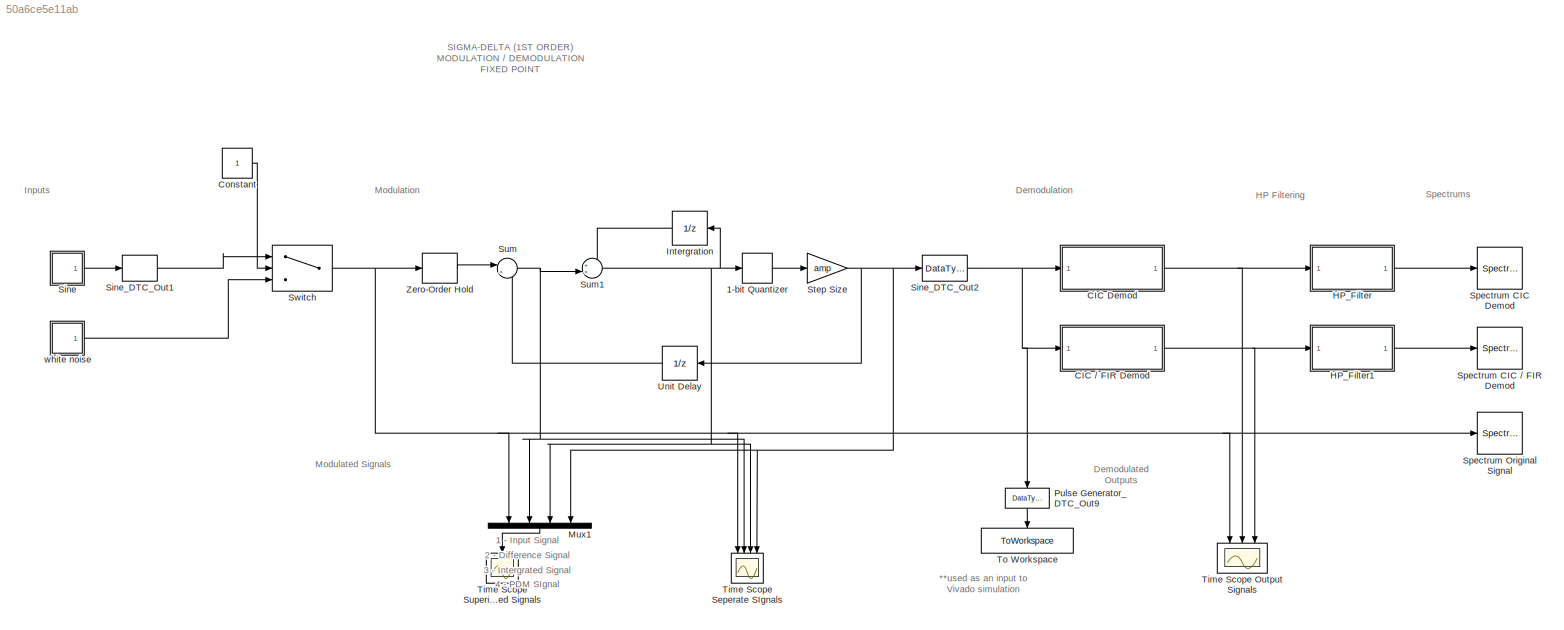
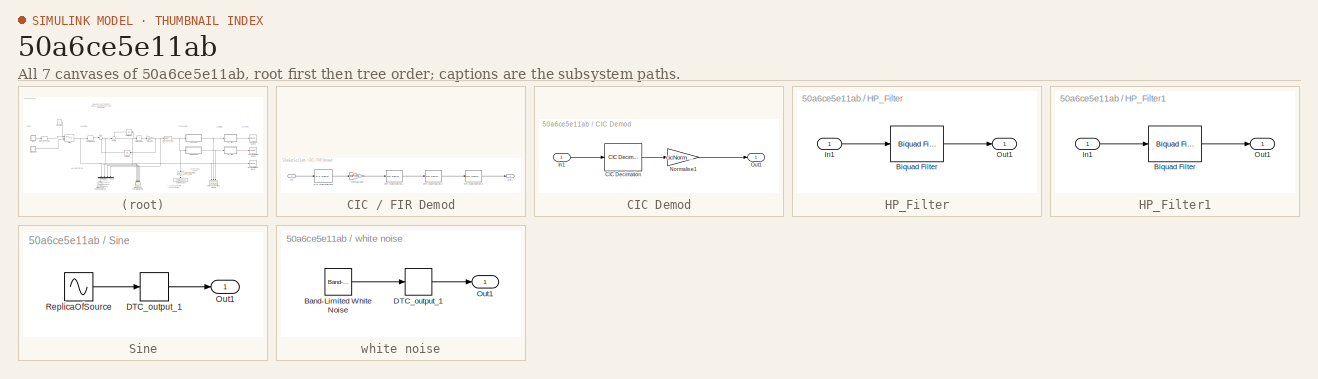
[diagram: thumbnail index - all 7 canvases of the model, root first then tree order]
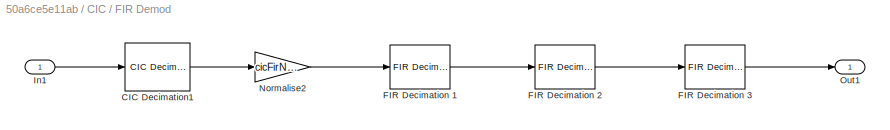
MODEL slx_50a6ce5e11ab
KIND model
CONFIG AbsTol = auto
CONFIG EnableMultiTasking = on
CONFIG FixedStep = auto
CONFIG MaxStep = auto
CONFIG MinStep = auto
CONFIG RelTol = 1e-3
CONFIG SampleTimeConstraint = Unconstrained
CONFIG Solver = FixedStepDiscrete
CONFIG SolverName = FixedStepDiscrete
CONFIG StartTime = 0.0
CONFIG StopTime = runTime
BLOCK [Signum] 1-bit Quantizer
BLOCK [SubSystem] CIC // FIR Demod
  Ports = [1, 1]
  RequestExecContextInheritance = off
BLOCK [Reference] CIC // FIR Demod/CIC Decimation1  REF=dspmlti4/CIC
Decimation
  Ports = [1, 1]
  SourceBlock = dspmlti4/CIC\nDecimation
  SourceProductBaseCode = DS
  SourceProductName = DSP System Toolbox
  SourceType = CIC Decimation
  UserDataPersistent = on
BLOCK [Reference] CIC // FIR Demod/FIR Decimation 1  REF=dspmlti4/FIR
Decimation
  Ports = [1, 1]
  SourceBlock = dspmlti4/FIR\nDecimation
  SourceProductBaseCode = DS
  SourceProductName = DSP System Toolbox
  SourceType = FIR Decimation
  UserDataPersistent = on
BLOCK [Reference] CIC // FIR Demod/FIR Decimation 2  REF=dspmlti4/FIR
Decimation
  Ports = [1, 1]
  SourceBlock = dspmlti4/FIR\nDecimation
  SourceProductBaseCode = DS
  SourceProductName = DSP System Toolbox
  SourceType = FIR Decimation
  Tag = FIR 2
  UserDataPersistent = on
BLOCK [Reference] CIC // FIR Demod/FIR Decimation 3  REF=dspmlti4/FIR
Decimation
  Ports = [1, 1]
  SourceBlock = dspmlti4/FIR\nDecimation
  SourceProductBaseCode = DS
  SourceProductName = DSP System Toolbox
  SourceType = FIR Decimation
  UserDataPersistent = on
BLOCK [Inport] CIC // FIR Demod/In1
  IconDisplay = Port number
  OutDataTypeStr = fixdt(1,2,0)
BLOCK [Gain] CIC // FIR Demod/Normalise2
  Gain = cicFirNormGain
  OutDataTypeStr = fixdt(1,16,14)
  ParamDataTypeStr = Inherit: Inherit via internal rule
  SaturateOnIntegerOverflow = off
BLOCK [Outport] CIC // FIR Demod/Out1
  IconDisplay = Port number
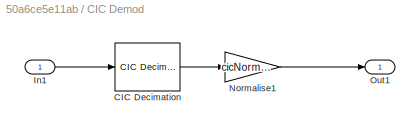
BLOCK [SubSystem] CIC Demod
  Ports = [1, 1]
  RequestExecContextInheritance = off
BLOCK [Reference] CIC Demod/CIC Decimation  REF=dspmlti4/CIC
Decimation
  Ports = [1, 1]
  SourceBlock = dspmlti4/CIC\nDecimation
  SourceProductBaseCode = DS
  SourceProductName = DSP System Toolbox
  SourceType = CIC Decimation
  UserDataPersistent = on
BLOCK [Inport] CIC Demod/In1
  IconDisplay = Port number
  OutDataTypeStr = fixdt(1,2,0)
BLOCK [Gain] CIC Demod/Normalise1
  Gain = cicNormGain
  OutDataTypeStr = fixdt(1,16,14)
  ParamDataTypeStr = Inherit: Inherit via internal rule
  SaturateOnIntegerOverflow = off
BLOCK [Outport] CIC Demod/Out1
  IconDisplay = Port number
BLOCK [Constant] Constant
  OutDataTypeStr = fixdt(0,16,15)
BLOCK [SubSystem] HP_Filter
  Ports = [1, 1]
  RequestExecContextInheritance = off
BLOCK [Reference] HP_Filter/Biquad Filter  REF=dsparch4/Biquad Filter
  Ports = [1, 1]
  SourceBlock = dsparch4/Biquad Filter
  SourceProductBaseCode = DS
  SourceProductName = DSP System Toolbox
  SourceType = Biquad Filter
  UserDataPersistent = on
BLOCK [Inport] HP_Filter/In1
  IconDisplay = Port number
  OutDataTypeStr = fixdt(1,16,14)
BLOCK [Outport] HP_Filter/Out1
  IconDisplay = Port number
BLOCK [SubSystem] HP_Filter1
  Ports = [1, 1]
  RequestExecContextInheritance = off
BLOCK [Reference] HP_Filter1/Biquad Filter  REF=dsparch4/Biquad Filter
  Ports = [1, 1]
  SourceBlock = dsparch4/Biquad Filter
  SourceProductBaseCode = DS
  SourceProductName = DSP System Toolbox
  SourceType = Biquad Filter
  UserDataPersistent = on
BLOCK [Inport] HP_Filter1/In1
  IconDisplay = Port number
  OutDataTypeStr = fixdt(1,16,14)
BLOCK [Outport] HP_Filter1/Out1
  IconDisplay = Port number
BLOCK [UnitDelay] Intergration
  HasFrameUpgradeWarning = on
  SampleTime = -1
BLOCK [Mux] Mux1
  DisplayOption = bar
  Ports = [4, 1]
BLOCK [DataTypeConversion] Pulse Generator_DTC_Out9
  OutDataTypeStr = fixdt(0,1,0)
  RndMeth = Round
BLOCK [SubSystem] Sine
  Ports = [0, 1]
  RequestExecContextInheritance = off
  Tag = DecoupledSystem
BLOCK [DataTypeConversion] Sine/DTC_output_1
  OutDataTypeStr = fixdt(1,16,15)
  RndMeth = Floor
  SaturateOnIntegerOverflow = off
BLOCK [Outport] Sine/Out1
  IconDisplay = Port number
  LockScale = on
BLOCK [Sin] Sine/ReplicaOfSource
  Amplitude = amp
  Frequency = 2*pi*freq
  Ports = [0, 1]
  SampleTime = 1/(fsAnalog)
BLOCK [DataTypeConversion] Sine_DTC_Out1
  OutDataTypeStr = fixdt(1,16,15)
  RndMeth = Floor
  SaturateOnIntegerOverflow = off
BLOCK [DataTypeConversion] Sine_DTC_Out2
  OutDataTypeStr = fixdt(1,2,0)
  RndMeth = Round
  SaturateOnIntegerOverflow = off
BLOCK [SpectrumAnalyzer] Spectrum CIC // FIR Demod
  Ports = [1]
  ScopeSpecificationString = spbscopes.SpectrumAnalyzerBlockCfg('CurrentConfiguration', extmgr.ConfigurationSet(extmgr.Configuration('Core','General UI',true),extmgr.Configuration('Core','Source UI',true),extmgr.Configuration('Sources','WiredSimulink',true),extmgr.Configuration('Sources','SimulinkEvent',false),extmgr.Configuration('Sources','Simulink',false),extmgr.Configuration('Sources','File',false),extmgr.Configuration('S...<+3861ch>
BLOCK [SpectrumAnalyzer] Spectrum CIC Demod
  Ports = [1]
  ScopeSpecificationString = spbscopes.SpectrumAnalyzerBlockCfg('CurrentConfiguration', extmgr.ConfigurationSet(extmgr.Configuration('Core','General UI',true),extmgr.Configuration('Core','Source UI',true),extmgr.Configuration('Sources','WiredSimulink',true),extmgr.Configuration('Sources','SimulinkEvent',false),extmgr.Configuration('Sources','Simulink',false),extmgr.Configuration('Sources','File',false),extmgr.Configuration('S...<+4220ch>
BLOCK [SpectrumAnalyzer] Spectrum Original Signal
  Ports = [1]
  ScopeSpecificationString = spbscopes.SpectrumAnalyzerBlockCfg('CurrentConfiguration', extmgr.ConfigurationSet(extmgr.Configuration('Core','General UI',true),extmgr.Configuration('Core','Source UI',true),extmgr.Configuration('Sources','WiredSimulink',true),extmgr.Configuration('Sources','SimulinkEvent',false),extmgr.Configuration('Sources','Simulink',false),extmgr.Configuration('Sources','File',false),extmgr.Configuration('S...<+3947ch>
BLOCK [Gain] Step Size
  Gain = amp
  OutDataTypeStr = fixdt(1,16,14)
  ParamDataTypeStr = Inherit: Inherit via internal rule
  RndMeth = Round
  SaturateOnIntegerOverflow = off
BLOCK [Sum] Sum
  IconShape = round
  InputSameDT = off
  Inputs = |+-
  OutDataTypeStr = fixdt(1,16,14)
  Ports = [2, 1]
  RndMeth = Round
  SaturateOnIntegerOverflow = off
BLOCK [Sum] Sum1
  IconShape = round
  InputSameDT = off
  Inputs = ++|
  OutDataTypeStr = fixdt(1,16,14)
  Ports = [2, 1]
  RndMeth = Round
  SaturateOnIntegerOverflow = off
BLOCK [Switch] Switch
  Criteria = u2 > Threshold
  InputSameDT = off
  OutDataTypeStr = fixdt(1,16,14)
  SaturateOnIntegerOverflow = off
BLOCK [Scope] Time Scope Output Signals
  Floating = off
  NumInputPorts = 3
  Ports = [3]
  ScopeSpecificationString = Simulink.scopes.TimeScopeBlockCfg('CurrentConfiguration', extmgr.ConfigurationSet(extmgr.Configuration('Core','General UI',true),extmgr.Configuration('Core','Source UI',true),extmgr.Configuration('Sources','WiredSimulink',true,'DataLoggingVariableName','ScopeData1'),extmgr.Configuration('Visuals','Time Domain',true,'SerializedDisplays',{struct('MinYLimReal','-1.24999','MaxYLimReal','1.24993','YLab...<+2852ch>
BLOCK [Scope] Time Scope Seperate SIgnals
  Floating = off
  NumInputPorts = 4
  Ports = [4]
  ScopeSpecificationString = Simulink.scopes.TimeScopeBlockCfg('CurrentConfiguration', extmgr.ConfigurationSet(extmgr.Configuration('Core','General UI',true),extmgr.Configuration('Core','Source UI',true),extmgr.Configuration('Sources','WiredSimulink',true,'DataLoggingVariableName','ScopeData1'),extmgr.Configuration('Visuals','Time Domain',true,'SerializedDisplays',{struct('MinYLimReal','-1.24996','MaxYLimReal','1.24993','YLab...<+3509ch>
BLOCK [Scope] Time Scope Superimposed Signals
  Commented = on
  Floating = off
  NumInputPorts = 1
  Ports = [1]
  ScopeSpecificationString = Simulink.scopes.TimeScopeBlockCfg('CurrentConfiguration', extmgr.ConfigurationSet(extmgr.Configuration('Core','General UI',true),extmgr.Configuration('Core','Source UI',true),extmgr.Configuration('Sources','WiredSimulink',true,'DataLoggingVariableName','ScopeData1'),extmgr.Configuration('Visuals','Time Domain',true,'SerializedDisplays',{struct('MinYLimReal','-0.92833','MaxYLimReal','1.03719','YLab...<+1607ch>
BLOCK [ToWorkspace] To Workspace
  FixptAsFi = on
  MaxDataPoints = inf
  Ports = [1]
  SampleTime = 1/fsPdm
  Save2DSignal = 2-D array (concatenate along first dimension)
  VariableName = Sim_PDM_Output
BLOCK [UnitDelay] Unit Delay
  HasFrameUpgradeWarning = on
  SampleTime = -1
BLOCK [ZeroOrderHold] Zero-Order Hold
  SampleTime = 1/fsPdm
BLOCK [SubSystem] white noise
  Ports = [0, 1]
  RequestExecContextInheritance = off
  Tag = DecoupledSystem
BLOCK [Reference] white noise/Band-Limited White Noise  REF=simulink/Sources/Band-Limited
White Noise
  Ports = [0, 1]
  SourceBlock = simulink/Sources/Band-Limited\nWhite Noise
  SourceProductBaseCode = SL
  SourceProductName = Simulink
  SourceType = Band-Limited White Noise.
BLOCK [DataTypeConversion] white noise/DTC_output_1
  OutDataTypeStr = fixdt(1,16,15)
  RndMeth = Floor
  SaturateOnIntegerOverflow = off
BLOCK [Outport] white noise/Out1
  IconDisplay = Port number
  LockScale = on
ANNOTATION (root): **used as an input to Vivado simulation
ANNOTATION (root): SIGMA-DELTA (1ST ORDER) MODULATION / DEMODULATION FIXED POINT
ANNOTATION (root): 4 - PDM SIgnal
ANNOTATION (root): 3 - Intergrated Signal
ANNOTATION (root): 2 - Difference Signal
ANNOTATION (root): 1 - Input Signal
ANNOTATION (root): Demodulated Outputs
ANNOTATION (root): Demodulation
ANNOTATION (root): HP Filtering
ANNOTATION (root): Inputs
ANNOTATION (root): Modulated Signals
ANNOTATION (root): Modulation
ANNOTATION (root): Spectrums
LINE 1-bit Quantizer:1 -> Step Size:1
LINE CIC // FIR Demod/CIC Decimation1:1 -> CIC // FIR Demod/Normalise2:1
LINE CIC // FIR Demod/FIR Decimation 1:1 -> CIC // FIR Demod/FIR Decimation 2:1
LINE CIC // FIR Demod/FIR Decimation 2:1 -> CIC // FIR Demod/FIR Decimation 3:1
LINE CIC // FIR Demod/FIR Decimation 3:1 -> CIC // FIR Demod/Out1:1
LINE CIC // FIR Demod/In1:1 -> CIC // FIR Demod/CIC Decimation1:1
LINE CIC // FIR Demod/Normalise2:1 -> CIC // FIR Demod/FIR Decimation 1:1
NET CIC // FIR Demod:1 -> HP_Filter1:1, Time Scope Output Signals:3
LINE CIC Demod/CIC Decimation:1 -> CIC Demod/Normalise1:1
LINE CIC Demod/In1:1 -> CIC Demod/CIC Decimation:1
LINE CIC Demod/Normalise1:1 -> CIC Demod/Out1:1
NET CIC Demod:1 -> HP_Filter:1, Time Scope Output Signals:2
LINE Constant:1 -> Switch:2
LINE HP_Filter/Biquad Filter:1 -> HP_Filter/Out1:1
LINE HP_Filter/In1:1 -> HP_Filter/Biquad Filter:1
LINE HP_Filter1/Biquad Filter:1 -> HP_Filter1/Out1:1
LINE HP_Filter1/In1:1 -> HP_Filter1/Biquad Filter:1
LINE HP_Filter1:1 -> Spectrum CIC // FIR Demod:1
LINE HP_Filter:1 -> Spectrum CIC Demod:1
LINE Intergration:1 -> Sum1:1
LINE Mux1:1 -> Time Scope Superimposed Signals:1
LINE Pulse Generator_DTC_Out9:1 -> To Workspace:1
LINE Sine/DTC_output_1:1 -> Sine/Out1:1
LINE Sine/ReplicaOfSource:1 -> Sine/DTC_output_1:1
LINE Sine:1 -> Sine_DTC_Out1:1
LINE Sine_DTC_Out1:1 -> Switch:1
NET Sine_DTC_Out2:1 -> CIC // FIR Demod:1, CIC Demod:1, Pulse Generator_DTC_Out9:1
NET Step Size:1 -> Mux1:4, Sine_DTC_Out2:1, Time Scope Seperate SIgnals:4, Unit Delay:1
NET Sum1:1 -> 1-bit Quantizer:1, Intergration:1, Mux1:3, Time Scope Seperate SIgnals:3
NET Sum:1 -> Mux1:2, Sum1:2, Time Scope Seperate SIgnals:2
NET Switch:1 -> Mux1:1, Spectrum Original Signal:1, Time Scope Output Signals:1, Time Scope Seperate SIgnals:1, Zero-Order Hold:1
LINE Unit Delay:1 -> Sum:2
LINE Zero-Order Hold:1 -> Sum:1
LINE white noise/Band-Limited White Noise:1 -> white noise/DTC_output_1:1
LINE white noise/DTC_output_1:1 -> white noise/Out1:1
LINE white noise:1 -> Switch:3
note: NET lines group one-source signal fan-out (src -> all destinations, sorted); 1:1 wires keep LINE
